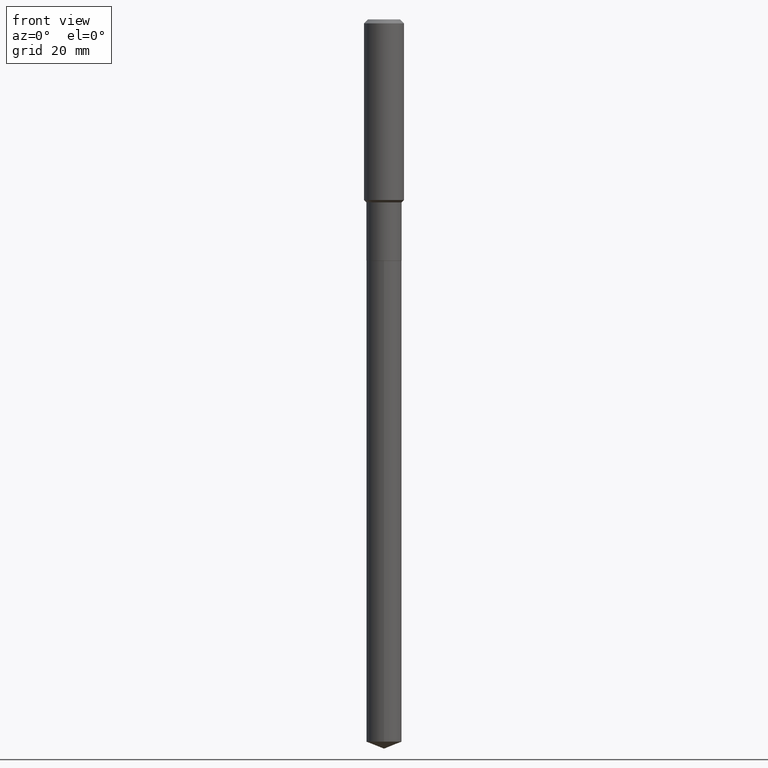
[diagram: clean part render]
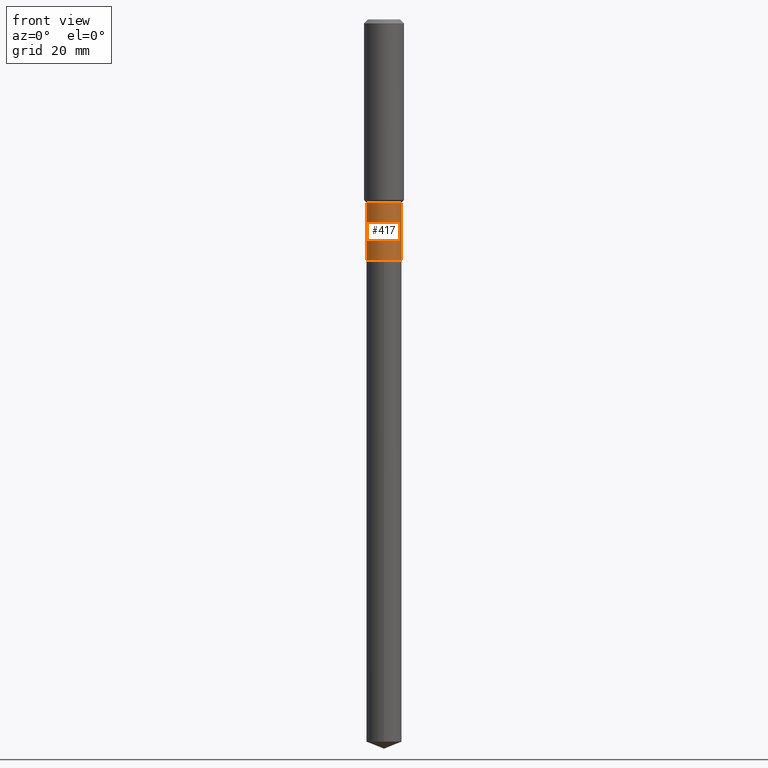
[diagram: same view with one face highlighted and labeled with its STEP entity id]
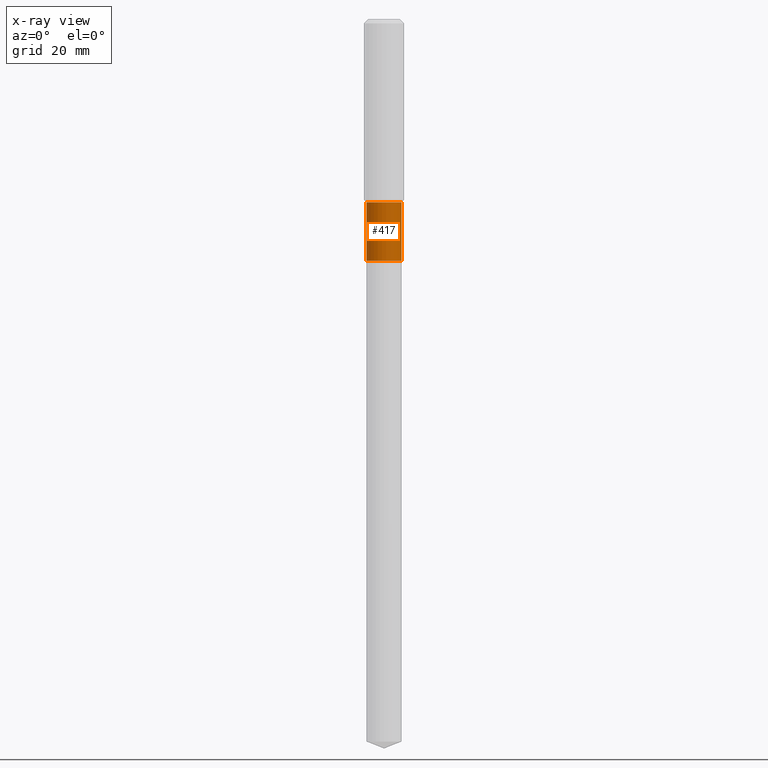
[diagram: x-ray of the same camera — body ghosted, the highlighted face saturated]
A machine part, front view. The second image highlights one B-rep face of the part: STEP entity #417.
The next image is the same camera in x-ray: the body ghosted, the highlighted face saturated — about 0% of this face is hidden behind the body in this view.
In plain terms, the highlighted cylindrical surface (edge-blend (fillet) strip) has radius 4.4005 mm, axis along (-0, 0, 1).
Its self-contained STEP definition (entity closure, byte-faithful):
#19 = EDGE_CURVE ( 'NONE', #487, #446, #98, .T. ) ;
#43 = CARTESIAN_POINT ( 'NONE',  ( 0.1732499999999999596, -1.209798283909145558E-15, 8.447976264066457276E-30 ) ) ;
#45 = ORIENTED_EDGE ( 'NONE', *, *, #164, .T. ) ;
#60 = VECTOR ( 'NONE', #158, 39.37007874015748143 ) ;
#74 = CARTESIAN_POINT ( 'NONE',  ( 0.1732499999999999318, -7.487481731149119896E-15, -1.797999999999999821 ) ) ;
#98 = CIRCLE ( 'NONE', #484, 0.1732499999999999318 ) ;
#101 = CARTESIAN_POINT ( 'NONE',  ( -0.1732499999999999873, -6.043835227909203138E-15, -2.369199999999999751 ) ) ;
#110 = DIRECTION ( 'NONE',  ( 1.000000000000000000, -6.982962677686267499E-15, 4.876176775795935793E-29 ) ) ;
#115 = CARTESIAN_POINT ( 'NONE',  ( 0.1732499999999999873, -9.481815871896324459E-15, -2.369199999999999751 ) ) ;
#119 = LINE ( 'NONE', #213, #252 ) ;
#140 = AXIS2_PLACEMENT_3D ( 'NONE', #418, #262, #110 ) ;
#144 = CARTESIAN_POINT ( 'NONE',  ( -0.1732499999999999318, -6.043835227909203927E-15, -1.797999999999999821 ) ) ;
#149 = DIRECTION ( 'NONE',  ( 1.000000000000000000, -6.982962677686265133E-15, 0.000000000000000000 ) ) ;
#150 = VERTEX_POINT ( 'NONE', #115 ) ;
#158 = DIRECTION ( 'NONE',  ( -2.445468806185136877E-29, 3.491481338843145188E-15, 1.000000000000000000 ) ) ;
#164 = EDGE_CURVE ( 'NONE', #150, #446, #195, .T. ) ;
#176 = EDGE_CURVE ( 'NONE', #457, #487, #119, .T. ) ;
#186 = CYLINDRICAL_SURFACE ( 'NONE', #140, 0.1732499999999999596 ) ;
#195 = LINE ( 'NONE', #43, #60 ) ;
#197 = ORIENTED_EDGE ( 'NONE', *, *, #19, .F. ) ;
#207 = ORIENTED_EDGE ( 'NONE', *, *, #347, .T. ) ;
#213 = CARTESIAN_POINT ( 'NONE',  ( -0.1732499999999999596, 1.231015289704373285E-15, -8.522055043866622021E-30 ) ) ;
#252 = VECTOR ( 'NONE', #403, 39.37007874015748143 ) ;
#261 = DIRECTION ( 'NONE',  ( -2.445468806185136597E-29, 3.491481338843145583E-15, 1.000000000000000000 ) ) ;
#262 = DIRECTION ( 'NONE',  ( -2.445468806185136597E-29, 3.491481338843145583E-15, 1.000000000000000000 ) ) ;
#302 = CARTESIAN_POINT ( 'NONE',  ( 4.396952913520875005E-29, -6.277683447239975324E-15, -1.797999999999999821 ) ) ;
#305 = DIRECTION ( 'NONE',  ( 1.000000000000000000, -6.982962677686267499E-15, 0.000000000000000000 ) ) ;
#311 = EDGE_LOOP ( 'NONE', ( #348, #207, #45, #197 ) ) ;
#325 = AXIS2_PLACEMENT_3D ( 'NONE', #370, #441, #149 ) ;
#347 = EDGE_CURVE ( 'NONE', #457, #150, #410, .T. ) ;
#348 = ORIENTED_EDGE ( 'NONE', *, *, #176, .F. ) ;
#370 = CARTESIAN_POINT ( 'NONE',  ( 5.793804695613824490E-29, -8.272017587987179099E-15, -2.369199999999999751 ) ) ;
#376 = FACE_OUTER_BOUND ( 'NONE', #311, .T. ) ;
#403 = DIRECTION ( 'NONE',  ( -2.445468806185136877E-29, 3.491481338843145188E-15, 1.000000000000000000 ) ) ;
#410 = CIRCLE ( 'NONE', #325, 0.1732499999999999873 ) ;
#417 = ADVANCED_FACE ( 'NONE', ( #376 ), #186, .T. ) ;
#418 = CARTESIAN_POINT ( 'NONE',  ( 0.000000000000000000, 0.000000000000000000, 0.000000000000000000 ) ) ;
#441 = DIRECTION ( 'NONE',  ( -2.445468806185136597E-29, 3.491481338843145583E-15, 1.000000000000000000 ) ) ;
#446 = VERTEX_POINT ( 'NONE', #74 ) ;
#457 = VERTEX_POINT ( 'NONE', #101 ) ;
#484 = AXIS2_PLACEMENT_3D ( 'NONE', #302, #261, #305 ) ;
#487 = VERTEX_POINT ( 'NONE', #144 ) ;